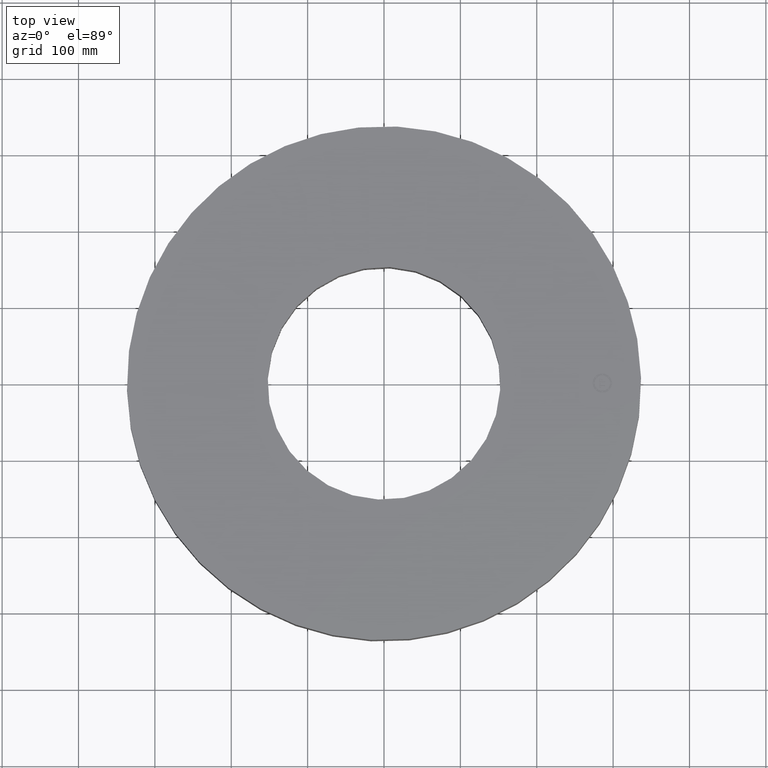
[diagram: clean part render]
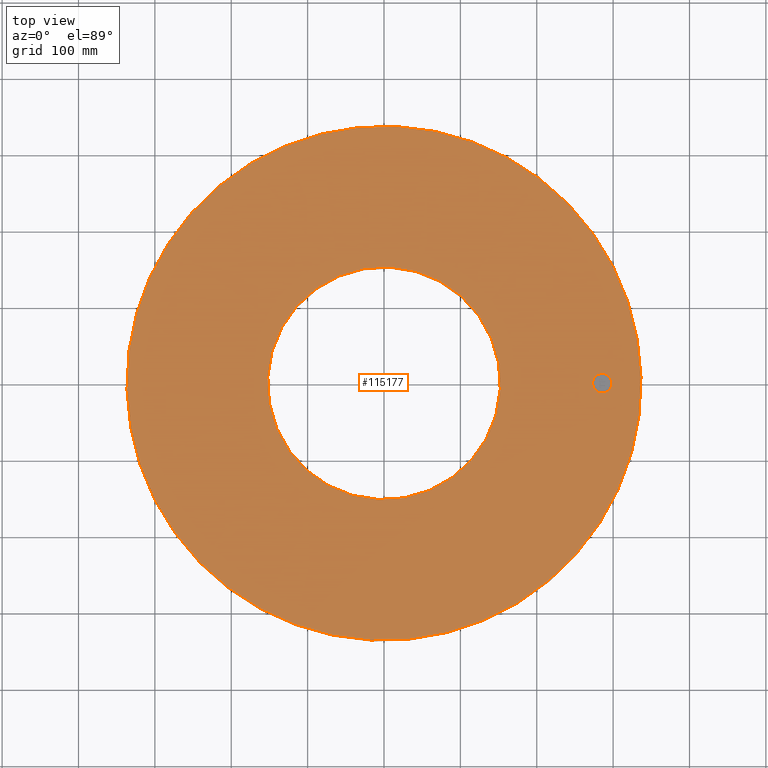
[diagram: same view with one face highlighted and labeled with its STEP entity id]
A machine part, top view. The second image highlights one B-rep face of the part: STEP entity #115177.
In plain terms, the highlighted planar face has unit normal (0, 0, -1).
Its self-contained STEP definition (entity closure, byte-faithful):
#7990=AXIS2_PLACEMENT_3D('Circle Axis2P3D',#7988,#7989,$) ;
#8009=AXIS2_PLACEMENT_3D('Circle Axis2P3D',#8007,#8008,$) ;
#10065=AXIS2_PLACEMENT_3D('Circle Axis2P3D',#10063,#10064,$) ;
#10091=AXIS2_PLACEMENT_3D('Circle Axis2P3D',#10089,#10090,$) ;
#115149=AXIS2_PLACEMENT_3D('Plane Axis2P3D',#115146,#115147,#115148) ;
#115161=AXIS2_PLACEMENT_3D('Circle Axis2P3D',#115159,#115160,$) ;
#115170=AXIS2_PLACEMENT_3D('Circle Axis2P3D',#115168,#115169,$) ;
#7985=CARTESIAN_POINT('Vertex',(-6.35238838653,-11.6279689451,4.12000000002)) ;
#7988=CARTESIAN_POINT('Axis2P3D Location',(0.,0.,4.12000000002)) ;
#7992=CARTESIAN_POINT('Vertex',(6.35238838653,11.6279689451,4.12000000002)) ;
#8007=CARTESIAN_POINT('Axis2P3D Location',(0.,0.,4.12000000002)) ;
#10063=CARTESIAN_POINT('Axis2P3D Location',(0.,0.,4.12000000002)) ;
#10067=CARTESIAN_POINT('Vertex',(2.87655323164,5.26549537136,4.12000000002)) ;
#10069=CARTESIAN_POINT('Vertex',(-2.87655323164,-5.26549537136,4.12000000002)) ;
#10089=CARTESIAN_POINT('Axis2P3D Location',(0.,0.,4.12000000002)) ;
#115146=CARTESIAN_POINT('Axis2P3D Location',(0.,6.00000000002,4.12000000002)) ;
#115159=CARTESIAN_POINT('Axis2P3D Location',(11.25,0.,4.12000000002)) ;
#115163=CARTESIAN_POINT('Vertex',(11.25,-0.499999995002,4.12000000002)) ;
#115165=CARTESIAN_POINT('Vertex',(11.25,0.499999995002,4.12000000002)) ;
#115168=CARTESIAN_POINT('Axis2P3D Location',(11.25,0.,4.12000000002)) ;
#7989=DIRECTION('Axis2P3D Direction',(0.,0.,-0.0393700787402)) ;
#8008=DIRECTION('Axis2P3D Direction',(0.,0.,-0.0393700787402)) ;
#10064=DIRECTION('Axis2P3D Direction',(0.,0.,-0.0393700787402)) ;
#10090=DIRECTION('Axis2P3D Direction',(0.,0.,-0.0393700787402)) ;
#115147=DIRECTION('Axis2P3D Direction',(0.,0.,-0.0393700787402)) ;
#115148=DIRECTION('Axis2P3D XDirection',(0.0393700787402,0.,0.)) ;
#115160=DIRECTION('Axis2P3D Direction',(0.,0.,-0.0393700787402)) ;
#115169=DIRECTION('Axis2P3D Direction',(0.,0.,-0.0393700787402)) ;
#115152=ORIENTED_EDGE('',*,*,#8011,.F.) ;
#115153=ORIENTED_EDGE('',*,*,#7994,.F.) ;
#115156=ORIENTED_EDGE('',*,*,#10093,.T.) ;
#115157=ORIENTED_EDGE('',*,*,#10071,.T.) ;
#115174=ORIENTED_EDGE('',*,*,#115167,.F.) ;
#115175=ORIENTED_EDGE('',*,*,#115172,.F.) ;
#115158=FACE_BOUND('',#115155,.T.) ;
#115176=FACE_BOUND('',#115173,.T.) ;
#115177=ADVANCED_FACE('PartBody',(#115154,#115158,#115176),#115150,.F.) ;
#7991=CIRCLE('generated circle',#7990,13.2500000001) ;
#8010=CIRCLE('generated circle',#8009,13.2500000001) ;
#10066=CIRCLE('generated circle',#10065,6.00000000002) ;
#10092=CIRCLE('generated circle',#10091,6.00000000002) ;
#115162=CIRCLE('generated circle',#115161,0.499999995002) ;
#115171=CIRCLE('generated circle',#115170,0.499999995002) ;
#7994=EDGE_CURVE('',#7986,#7993,#7991,.T.) ;
#8011=EDGE_CURVE('',#7993,#7986,#8010,.T.) ;
#10071=EDGE_CURVE('',#10068,#10070,#10066,.T.) ;
#10093=EDGE_CURVE('',#10070,#10068,#10092,.T.) ;
#115167=EDGE_CURVE('',#115164,#115166,#115162,.F.) ;
#115172=EDGE_CURVE('',#115166,#115164,#115171,.F.) ;
#115151=EDGE_LOOP('',(#115152,#115153)) ;
#115155=EDGE_LOOP('',(#115156,#115157)) ;
#115173=EDGE_LOOP('',(#115174,#115175)) ;
#115154=FACE_OUTER_BOUND('',#115151,.T.) ;
#115150=PLANE('',#115149) ;
#7986=VERTEX_POINT('',#7985) ;
#7993=VERTEX_POINT('',#7992) ;
#10068=VERTEX_POINT('',#10067) ;
#10070=VERTEX_POINT('',#10069) ;
#115164=VERTEX_POINT('',#115163) ;
#115166=VERTEX_POINT('',#115165) ;